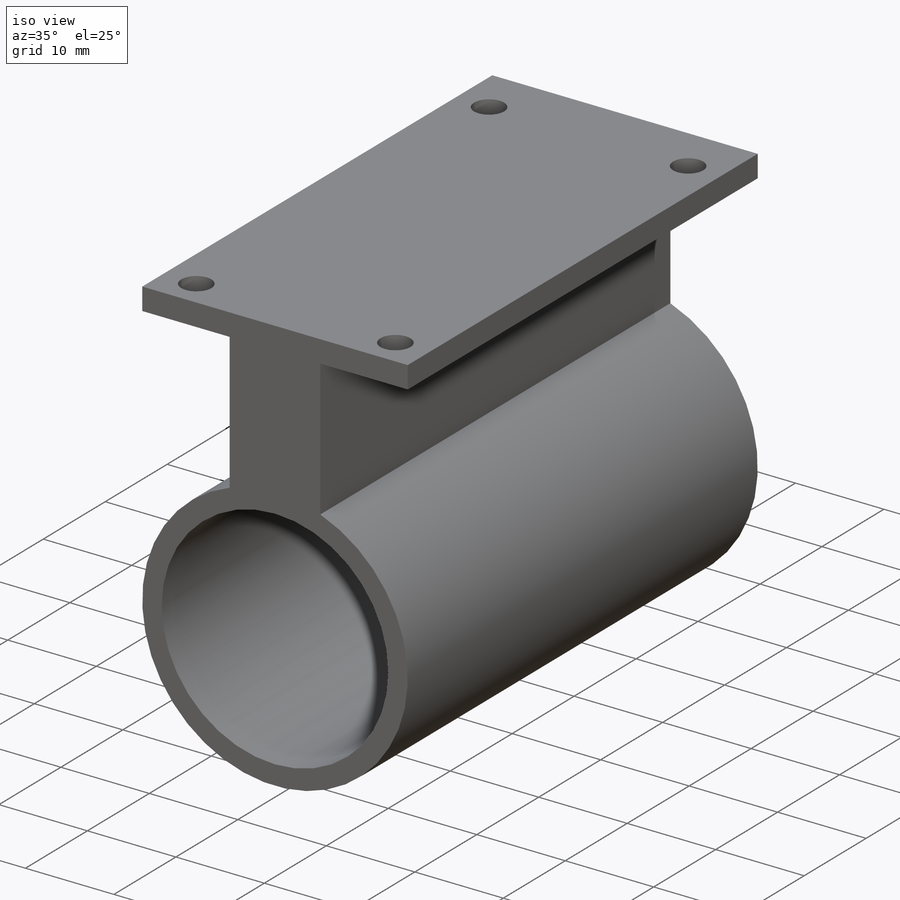
[diagram: iso view]
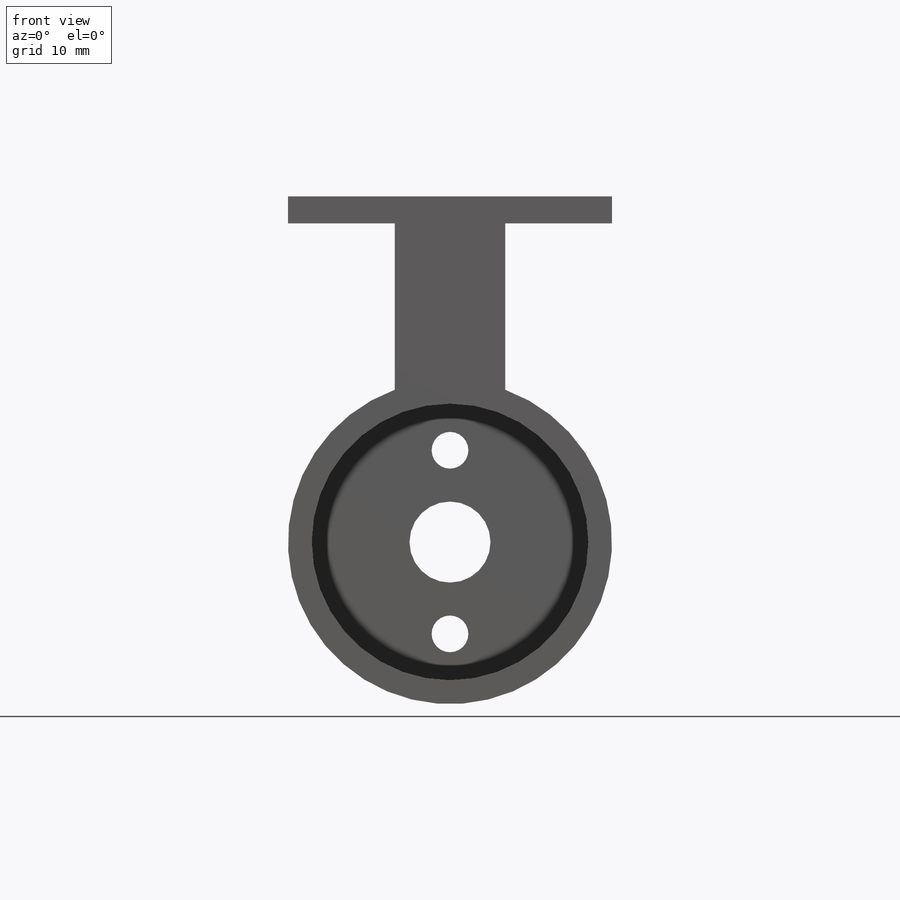
[diagram: front view]
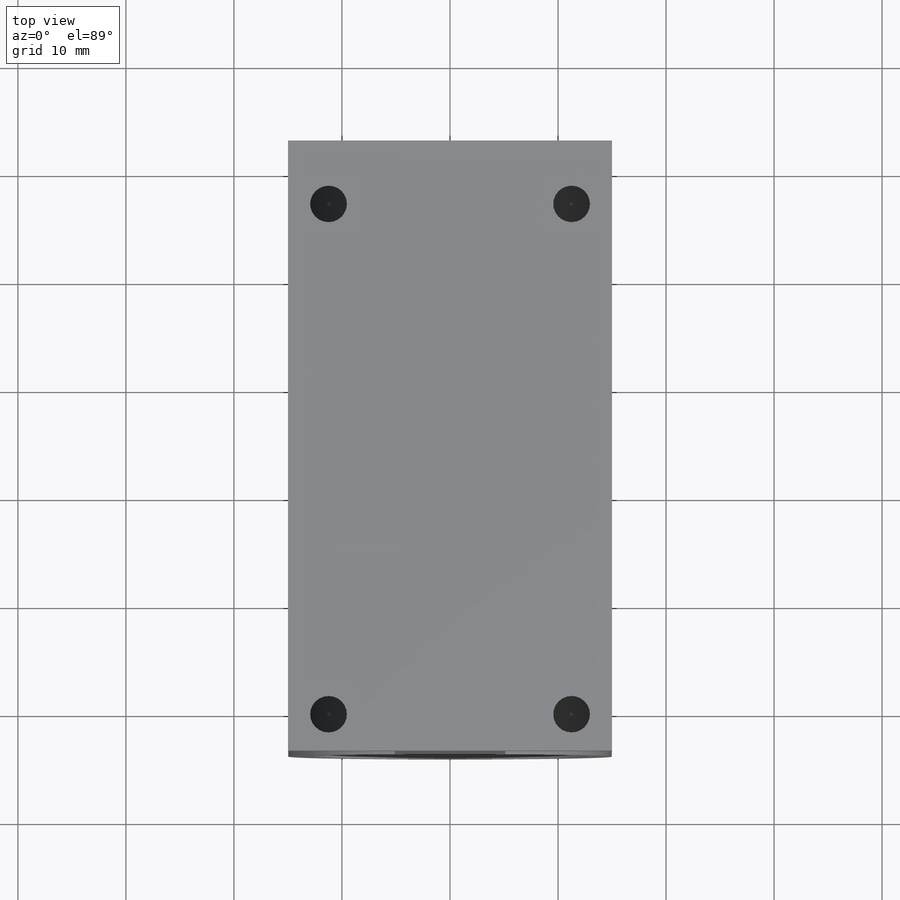
[diagram: top view]
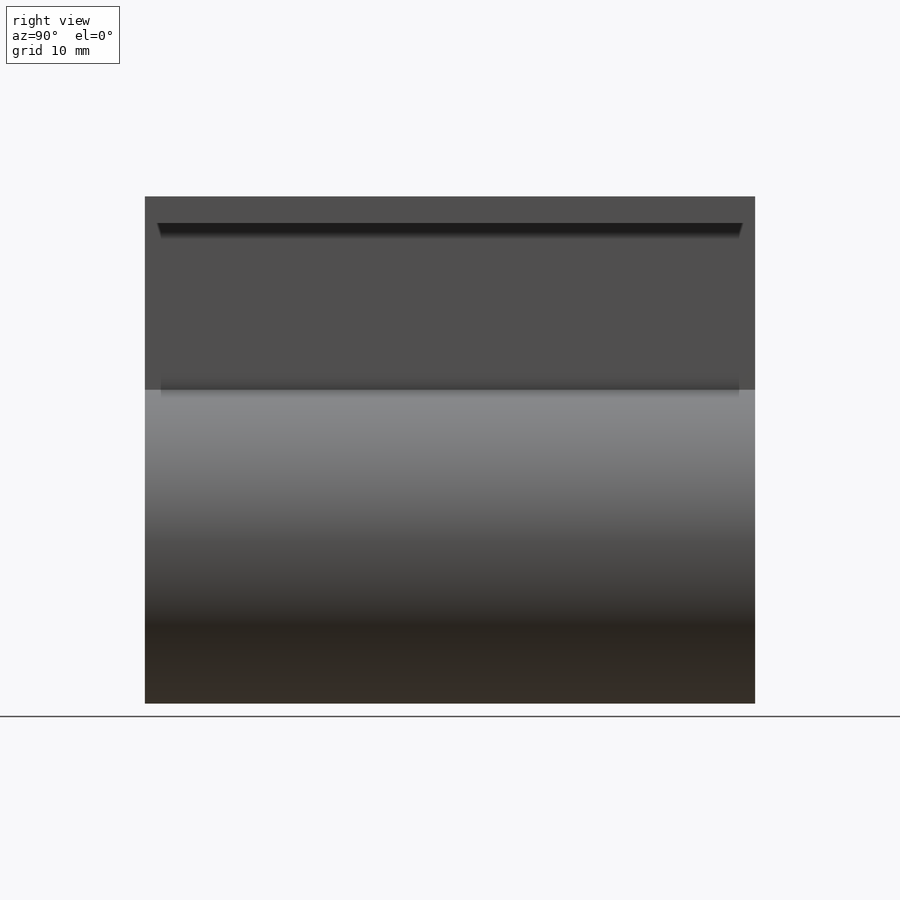
[diagram: right view]
SOLIDWORKS PART (.sldprt)
format: sldprt  version: not decoded by parser v0  size: 343,552 bytes
history: native  units: mm
features: sketch x14, cut_extrude x7, plane x3, extrude x3, material x1 (+10 scaffold rows collapsed)
feature tree (38):
  scaffold x10  (default folders/planes/origin — collapsed)
  material  "Material <sin especificar>"
  plane  "Alzado"
  plane  "Planta"
  plane  "Vista lateral"
  sketch  "Croquis1"  dims[D5=~9.242677mm D1=30.0mm D2=2.5mm D3=12.0mm D4=32.0mm]
  extrude  "Saliente-Extruir1"  Depth=54mm
  sketch  "Croquis2"
  extrude  "Saliente-Extruir2"  Depth=2.5mm
  sketch  "Croquis3"  dims[D1=3.5mm]
  cut_extrude  "Cortar-Extruir2"  Depth=2.5mm
  sketch  "Croquis5"  dims[D1=8.5mm]
  cut_extrude  "Cortar-Extruir3"  Depth=2.5mm
  sketch  "Croquis9"  dims[c1.D1=~1.493104mm c1.D5=3.0mm c2.D1=47.25mm c2.D2=47.25mm c3.D1=47.25mm c3.D2=22.5mm c3.D3=54.0mm c3.D4=30.0mm]
  cut_extrude  "Cortar-Extruir5"  Depth=2.5mm
  sketch  "Croquis10"
  extrude  "Saliente-Extruir3"  Depth=2.5mm
  sketch  "Croquis11"  dims[D1=~12.94888mm]
  cut_extrude  "Cortar-Extruir6"  Depth=54mm
  sketch  "Croquis12"  dims[D1=3.0mm D2=3.0mm]
  cut_extrude  "Cortar-Extruir7"  Depth=2.5mm
  sketch  "Croquis13"  dims[D1=3.4mm D2=7.5mm D3=3.4mm D4=~15.400828mm]
  sketch  "Croquis14"  dims[c1.D2=~1.711201mm c1.D1=3.0mm c2.D2=3.4mm]
  sketch  "Croquis16"  dims[D1=3.4mm D2=3.6mm]
  cut_extrude  "Cortar-Extruir8"  Depth=2.5mm
  sketch  "Croquis17"  dims[D2=~2.013597mm D1=3.4mm]
  cut_extrude  "Cortar-Extruir9"  Depth=2.5mm
  sketch  "Croquis18"
  sketch  "Croquis19"
decode coverage: 20 of 24 modeling features carry decoded parameters
note: ~ marks probable driven/reference dimensions
note: suppression state not decoded; provenance and decode notes live in map.json
